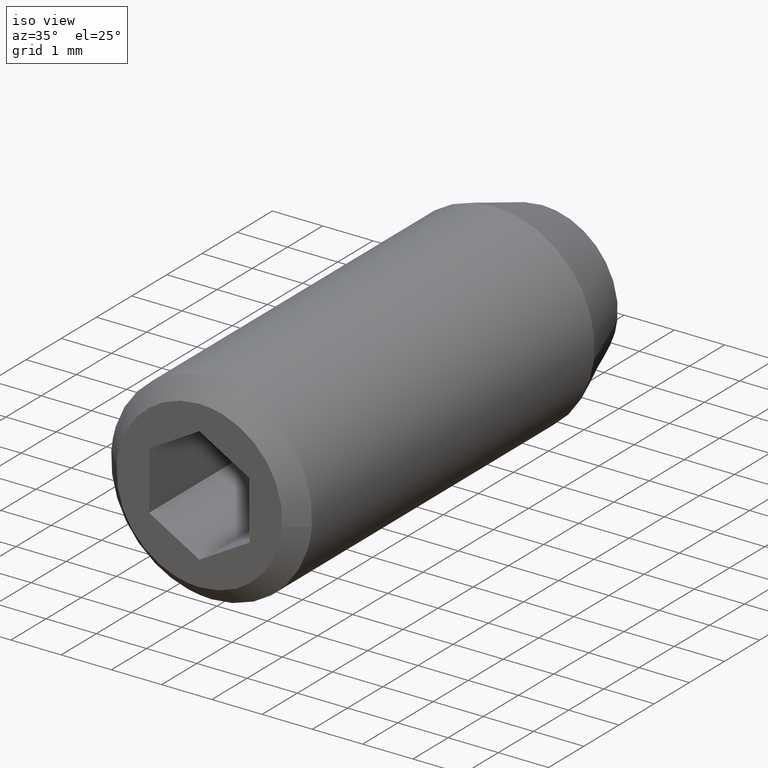
[diagram: clean part render]
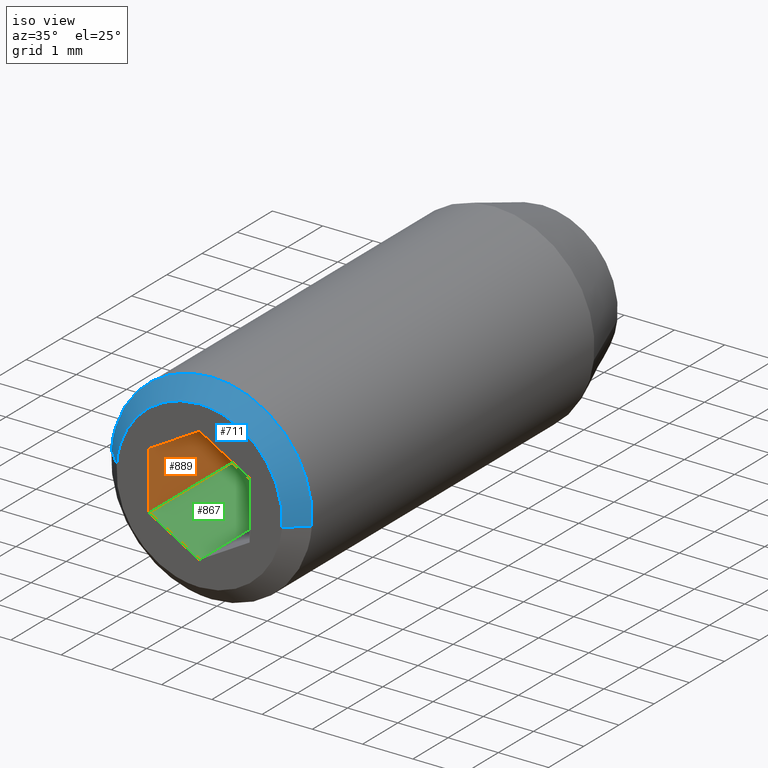
[diagram: same view with three faces highlighted in distinct colors, each labeled with its STEP entity id]
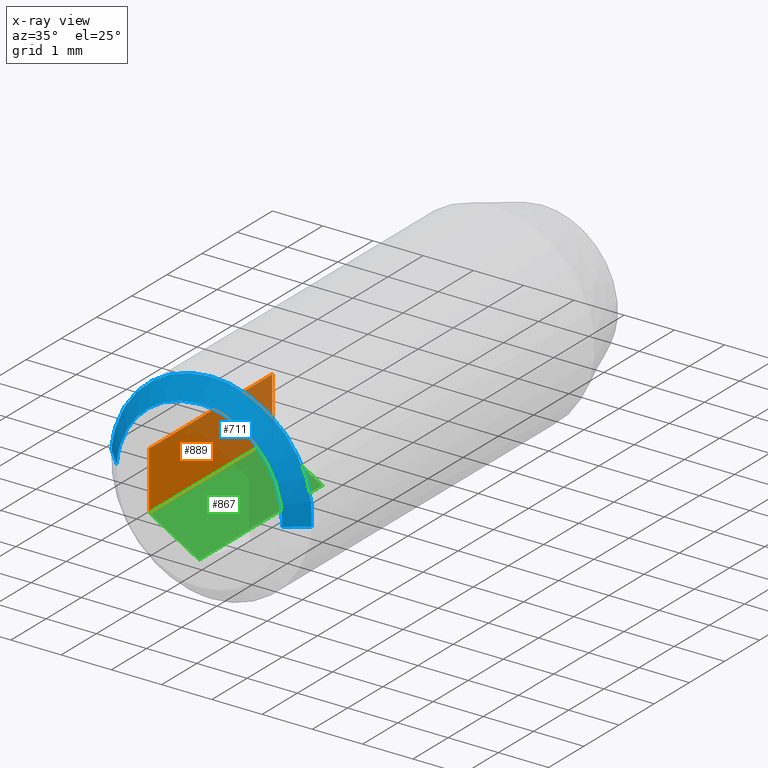
[diagram: x-ray of the same camera — body ghosted, the three highlighted faces saturated]
A machine part, iso view with three faces highlighted in distinct colors.
The next image is the same camera in x-ray (body ghosted, the three faces saturated) — at least one of them is partly hidden behind the body in this view.
Their STEP definitions:

[orange] entity #889 — the highlighted face is a freeform B-spline surface patch.
#731=CARTESIAN_POINT('',(-1.0,-7.0,0.577350000000000));
#732=VERTEX_POINT('',#731);
#738=CARTESIAN_POINT('',(-1.0,-7.0,-0.577350000000017));
#739=VERTEX_POINT('',#738);
#740=CARTESIAN_POINT('',(-1.0,-7.0,0.577350000000000));
#741=CARTESIAN_POINT('',(-1.0,-7.0,-0.577350000000017));
#742=QUASI_UNIFORM_CURVE('',1,(#740,#741),.UNSPECIFIED.,.F.,.U.);
#743=EDGE_CURVE('',#732,#739,#742,.T.);
#851=CARTESIAN_POINT('',(-1.0,-10.500000000000000,-0.577350000000017));
#852=VERTEX_POINT('',#851);
#860=CARTESIAN_POINT('',(-1.0,-7.0,-0.577350000000017));
#861=CARTESIAN_POINT('',(-1.0,-10.500000000000000,-0.577350000000017));
#862=QUASI_UNIFORM_CURVE('',1,(#860,#861),.UNSPECIFIED.,.F.,.U.);
#863=EDGE_CURVE('',#739,#852,#862,.T.);
#868=CARTESIAN_POINT('',(-1.0,-10.674824993216321,-0.635027284440980));
#869=CARTESIAN_POINT('',(-1.0,-10.674824993216321,0.635027294764785));
#870=CARTESIAN_POINT('',(-1.0,-6.825174912906362,-0.635027284440980));
#871=CARTESIAN_POINT('',(-1.0,-6.825174912906362,0.635027294764785));
#872=B_SPLINE_SURFACE_WITH_KNOTS('',1,1,((#868,#870),(#869,#871)),.UNSPECIFIED.,.F.,.F.,.U.,(2,2),(2,2),(0.041708319303021,0.958291688147560),(0.0,3.849650080309961),.UNSPECIFIED.);
#873=CARTESIAN_POINT('',(-1.0,-10.500000000000000,0.577350000000000));
#874=VERTEX_POINT('',#873);
#875=CARTESIAN_POINT('',(-1.0,-10.500000000000000,0.577350000000000));
#876=CARTESIAN_POINT('',(-1.0,-10.500000000000000,-0.577350000000017));
#877=QUASI_UNIFORM_CURVE('',1,(#875,#876),.UNSPECIFIED.,.F.,.U.);
#878=EDGE_CURVE('',#874,#852,#877,.T.);
#879=ORIENTED_EDGE('',*,*,#878,.T.);
#880=ORIENTED_EDGE('',*,*,#863,.F.);
#881=ORIENTED_EDGE('',*,*,#743,.F.);
#882=CARTESIAN_POINT('',(-1.0,-7.0,0.577350000000000));
#883=CARTESIAN_POINT('',(-1.0,-10.500000000000000,0.577350000000000));
#884=QUASI_UNIFORM_CURVE('',1,(#882,#883),.UNSPECIFIED.,.F.,.U.);
#885=EDGE_CURVE('',#732,#874,#884,.T.);
#886=ORIENTED_EDGE('',*,*,#885,.T.);
#887=EDGE_LOOP('',(#879,#880,#881,#886));
#888=FACE_OUTER_BOUND('',#887,.T.);
#889=ADVANCED_FACE('',(#888),#872,.F.);

[blue] entity #711 — the highlighted face is a freeform B-spline surface patch.
#349=CARTESIAN_POINT('',(-1.993834667467310,-10.149999999997350,0.156918191476072));
#350=VERTEX_POINT('',#349);
#364=CARTESIAN_POINT('',(0.0,-10.150000000000000,2.0));
#365=VERTEX_POINT('',#364);
#366=CARTESIAN_POINT('',(0.0,-10.150000000000000,2.0));
#367=CARTESIAN_POINT('',(-1.848780983278884,-10.149999999999999,2.000000000000000));
#368=CARTESIAN_POINT('',(-1.993834667467310,-10.149999999997348,0.156918191476072));
#376=(BOUNDED_CURVE()B_SPLINE_CURVE(2,(#366,#367,#368),.UNSPECIFIED.,.F.,.U.)B_SPLINE_CURVE_WITH_KNOTS((3,3),(0.500000000000000,0.736331300629298),.UNSPECIFIED.)CURVE()GEOMETRIC_REPRESENTATION_ITEM()RATIONAL_B_SPLINE_CURVE((1.0,0.723120658609261,0.969723356164576))REPRESENTATION_ITEM(''));
#377=EDGE_CURVE('',#365,#350,#376,.T.);
#379=CARTESIAN_POINT('',(1.993834667467310,-10.149999999997350,-0.156918191476073));
#380=VERTEX_POINT('',#379);
#381=CARTESIAN_POINT('',(1.993834667467310,-10.149999999997348,-0.156918191476073));
#382=CARTESIAN_POINT('',(2.000000000000000,-10.150000000000000,-0.078580214035607));
#383=CARTESIAN_POINT('',(2.0,-10.150000000000000,-4.439198E-016));
#384=CARTESIAN_POINT('',(2.000000000000000,-10.149999999999999,2.000000000000000));
#385=CARTESIAN_POINT('',(0.0,-10.150000000000000,2.0));
#393=(BOUNDED_CURVE()B_SPLINE_CURVE(2,(#381,#382,#383,#384,#385),.UNSPECIFIED.,.F.,.U.)B_SPLINE_CURVE_WITH_KNOTS((3,2,3),(0.236331300629298,0.250000000000000,0.500000000000000),.UNSPECIFIED.)CURVE()GEOMETRIC_REPRESENTATION_ITEM()RATIONAL_B_SPLINE_CURVE((0.969723356164576,0.983986122577287,1.0,0.707106781186548,1.0))REPRESENTATION_ITEM(''));
#394=EDGE_CURVE('',#380,#365,#393,.T.);
#608=CARTESIAN_POINT('',(1.644913600660695,-10.499999999997391,-0.129457507970948));
#609=VERTEX_POINT('',#608);
#623=CARTESIAN_POINT('',(-1.644913600660695,-10.499999999997391,0.129457507970948));
#624=VERTEX_POINT('',#623);
#640=CARTESIAN_POINT('',(-1.644913600660695,-10.499999999997391,0.129457507970948));
#641=CARTESIAN_POINT('',(-1.993834667467310,-10.149999999997350,0.156918191476072));
#642=QUASI_UNIFORM_CURVE('',1,(#640,#641),.UNSPECIFIED.,.F.,.U.);
#643=EDGE_CURVE('',#624,#350,#642,.T.);
#649=CARTESIAN_POINT('',(1.644913600660695,-10.499999999997391,-0.129457507970948));
#650=CARTESIAN_POINT('',(1.993834667467310,-10.149999999997350,-0.156918191476073));
#651=QUASI_UNIFORM_CURVE('',1,(#649,#650),.UNSPECIFIED.,.F.,.U.);
#652=EDGE_CURVE('',#609,#380,#651,.T.);
#657=CARTESIAN_POINT('',(-1.636190573989471,-10.508749999999999,0.128770990863324));
#658=CARTESIAN_POINT('',(-1.507419583126147,-10.508750000000004,1.764961564852795));
#659=CARTESIAN_POINT('',(0.128770990863325,-10.508749999999999,1.636190573989470));
#660=CARTESIAN_POINT('',(1.764961564852795,-10.508750000000004,1.507419583126145));
#661=CARTESIAN_POINT('',(1.636190573989471,-10.508749999999999,-0.128770990863325));
#662=CARTESIAN_POINT('',(-2.002775769803177,-10.141031249999999,0.157621871470500));
#663=CARTESIAN_POINT('',(-1.845153898332676,-10.141031249999997,2.160397641273678));
#664=CARTESIAN_POINT('',(0.157621871470500,-10.141031249999999,2.002775769803177));
#665=CARTESIAN_POINT('',(2.160397641273678,-10.141031249999997,1.845153898332676));
#666=CARTESIAN_POINT('',(2.002775769803177,-10.141031249999999,-0.157621871470501));
#674=(BOUNDED_SURFACE()B_SPLINE_SURFACE(2,1,((#657,#662),(#658,#663),(#659,#664),(#660,#665),(#661,#666)),.UNSPECIFIED.,.F.,.F.,.U.)B_SPLINE_SURFACE_WITH_KNOTS((3,2,3),(2,2),(0.0,3.328568410534899,6.657136821069798),(0.0,1.0),.UNSPECIFIED.)GEOMETRIC_REPRESENTATION_ITEM()RATIONAL_B_SPLINE_SURFACE(((1.0,1.0),(0.707106781186548,0.707106781186548),(1.0,1.0),(0.707106781186548,0.707106781186548),(1.0,1.0)))REPRESENTATION_ITEM('')SURFACE());
#675=CARTESIAN_POINT('',(0.0,-10.500000000000000,1.650000000000000));
#676=VERTEX_POINT('',#675);
#677=CARTESIAN_POINT('',(1.644913600660695,-10.499999999997385,-0.129457507970948));
#678=CARTESIAN_POINT('',(1.650000000000000,-10.500000000000002,-0.064828676582546));
#679=CARTESIAN_POINT('',(1.650000000000000,-10.500000000000000,-4.439198E-016));
#680=CARTESIAN_POINT('',(1.649999999999999,-10.500000000000002,1.649999999999999));
#681=CARTESIAN_POINT('',(0.0,-10.500000000000000,1.650000000000000));
#689=(BOUNDED_CURVE()B_SPLINE_CURVE(2,(#677,#678,#679,#680,#681),.UNSPECIFIED.,.F.,.U.)B_SPLINE_CURVE_WITH_KNOTS((3,2,3),(0.236331300628640,0.250000000000000,0.500000000000000),.UNSPECIFIED.)CURVE()GEOMETRIC_REPRESENTATION_ITEM()RATIONAL_B_SPLINE_CURVE((0.969723356163203,0.983986122576516,1.0,0.707106781186548,1.0))REPRESENTATION_ITEM(''));
#690=EDGE_CURVE('',#609,#676,#689,.T.);
#691=ORIENTED_EDGE('',*,*,#690,.F.);
#692=ORIENTED_EDGE('',*,*,#652,.T.);
#693=ORIENTED_EDGE('',*,*,#394,.T.);
#694=ORIENTED_EDGE('',*,*,#377,.T.);
#695=ORIENTED_EDGE('',*,*,#643,.F.);
#696=CARTESIAN_POINT('',(0.0,-10.500000000000000,1.650000000000000));
#697=CARTESIAN_POINT('',(-1.525244311199214,-10.500000000000000,1.650000000000000));
#698=CARTESIAN_POINT('',(-1.644913600660696,-10.499999999997391,0.129457507970948));
#706=(BOUNDED_CURVE()B_SPLINE_CURVE(2,(#696,#697,#698),.UNSPECIFIED.,.F.,.U.)B_SPLINE_CURVE_WITH_KNOTS((3,3),(0.500000000000000,0.736331300628640),.UNSPECIFIED.)CURVE()GEOMETRIC_REPRESENTATION_ITEM()RATIONAL_B_SPLINE_CURVE((1.0,0.723120658610031,0.969723356163204))REPRESENTATION_ITEM(''));
#707=EDGE_CURVE('',#676,#624,#706,.T.);
#708=ORIENTED_EDGE('',*,*,#707,.F.);
#709=EDGE_LOOP('',(#691,#692,#693,#694,#695,#708));
#710=FACE_OUTER_BOUND('',#709,.T.);
#711=ADVANCED_FACE('',(#710),#674,.T.);

[green] entity #867 — the highlighted face is a freeform B-spline surface patch.
#738=CARTESIAN_POINT('',(-1.0,-7.0,-0.577350000000017));
#739=VERTEX_POINT('',#738);
#745=CARTESIAN_POINT('',(0.0,-7.0,-1.154701000000000));
#746=VERTEX_POINT('',#745);
#747=CARTESIAN_POINT('',(-1.0,-7.0,-0.577350000000017));
#748=CARTESIAN_POINT('',(0.0,-7.0,-1.154701000000000));
#749=QUASI_UNIFORM_CURVE('',1,(#747,#748),.UNSPECIFIED.,.F.,.U.);
#750=EDGE_CURVE('',#739,#746,#749,.T.);
#829=CARTESIAN_POINT('',(0.0,-10.500000000000000,-1.154701000000000));
#830=VERTEX_POINT('',#829);
#838=CARTESIAN_POINT('',(0.0,-7.0,-1.154701000000000));
#839=CARTESIAN_POINT('',(0.0,-10.500000000000000,-1.154701000000000));
#840=QUASI_UNIFORM_CURVE('',1,(#838,#839),.UNSPECIFIED.,.F.,.U.);
#841=EDGE_CURVE('',#746,#830,#840,.T.);
#846=CARTESIAN_POINT('',(0.049949998061804,-10.674824993216321,-1.183539681330984));
#847=CARTESIAN_POINT('',(-1.049950024883896,-10.674824993216321,-0.548511303183276));
#848=CARTESIAN_POINT('',(0.049949998061804,-6.825174912906362,-1.183539681330984));
#849=CARTESIAN_POINT('',(-1.049950024883896,-6.825174912906362,-0.548511303183276));
#850=B_SPLINE_SURFACE_WITH_KNOTS('',1,1,((#846,#848),(#847,#849)),.UNSPECIFIED.,.F.,.F.,.U.,(2,2),(2,2),(0.041708334948495,0.958291687403247),(0.0,3.849650080309961),.UNSPECIFIED.);
#851=CARTESIAN_POINT('',(-1.0,-10.500000000000000,-0.577350000000017));
#852=VERTEX_POINT('',#851);
#853=CARTESIAN_POINT('',(-1.0,-10.500000000000000,-0.577350000000017));
#854=CARTESIAN_POINT('',(0.0,-10.500000000000000,-1.154701000000000));
#855=QUASI_UNIFORM_CURVE('',1,(#853,#854),.UNSPECIFIED.,.F.,.U.);
#856=EDGE_CURVE('',#852,#830,#855,.T.);
#857=ORIENTED_EDGE('',*,*,#856,.T.);
#858=ORIENTED_EDGE('',*,*,#841,.F.);
#859=ORIENTED_EDGE('',*,*,#750,.F.);
#860=CARTESIAN_POINT('',(-1.0,-7.0,-0.577350000000017));
#861=CARTESIAN_POINT('',(-1.0,-10.500000000000000,-0.577350000000017));
#862=QUASI_UNIFORM_CURVE('',1,(#860,#861),.UNSPECIFIED.,.F.,.U.);
#863=EDGE_CURVE('',#739,#852,#862,.T.);
#864=ORIENTED_EDGE('',*,*,#863,.T.);
#865=EDGE_LOOP('',(#857,#858,#859,#864));
#866=FACE_OUTER_BOUND('',#865,.T.);
#867=ADVANCED_FACE('',(#866),#850,.F.);